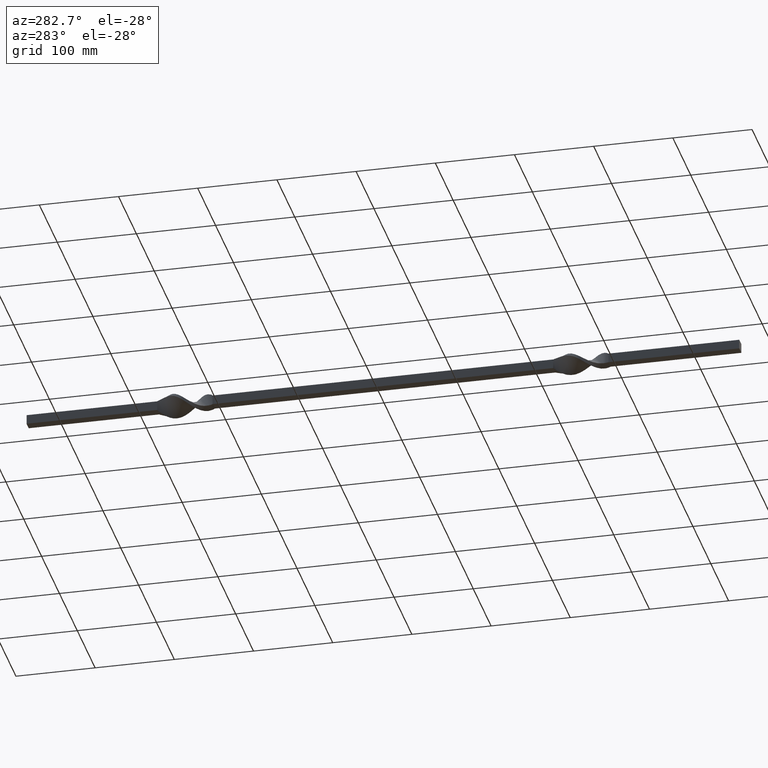
[diagram: clean part render]
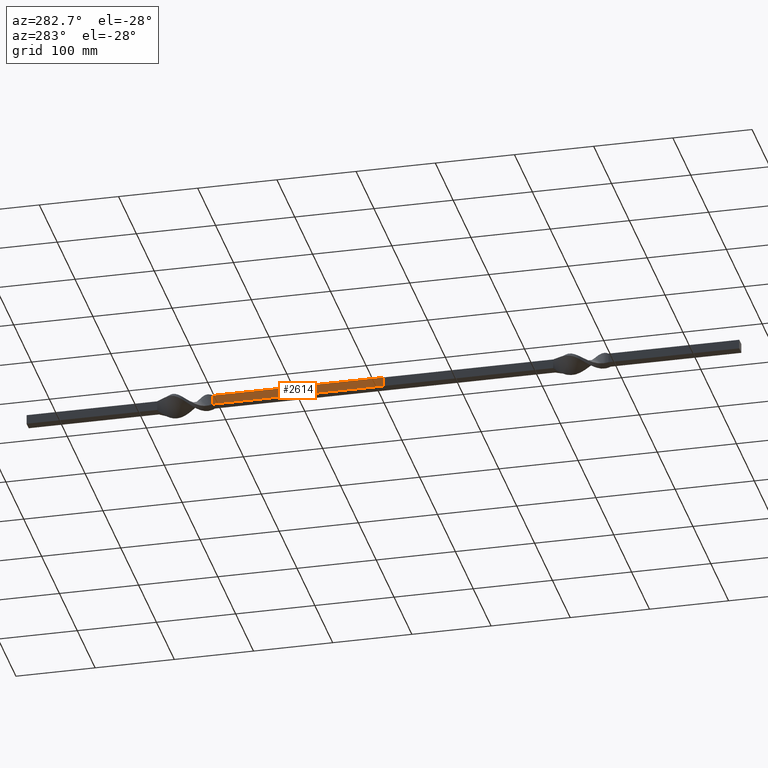
[diagram: same view with one face highlighted and labeled with its STEP entity id]
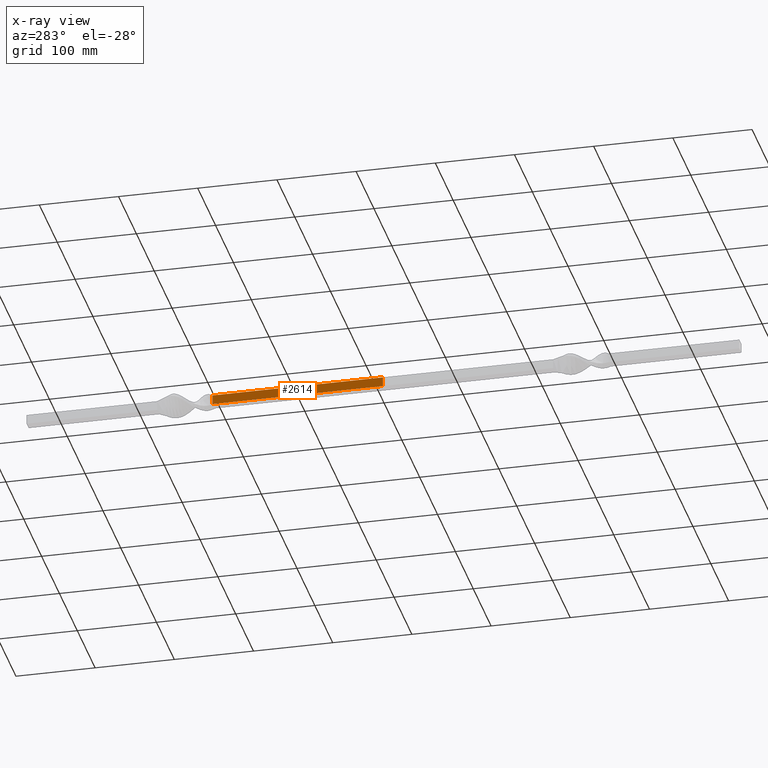
[diagram: x-ray of the same camera — body ghosted, the highlighted face saturated]
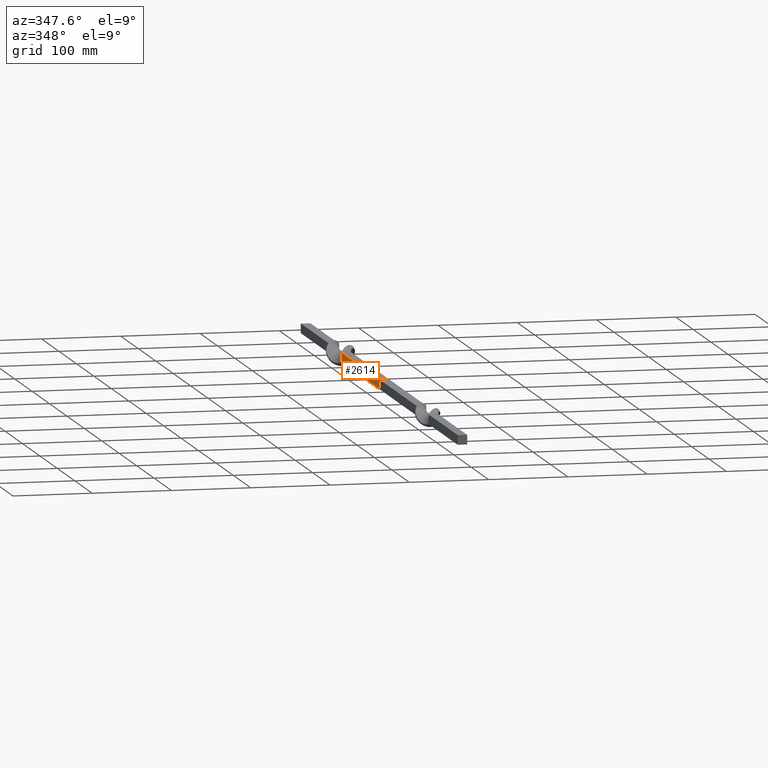
[diagram: same view with one face highlighted and labeled with its STEP entity id]
A machine part, auxiliary view. The second image highlights one B-rep face of the part: STEP entity #2614.
The next image is the same camera in x-ray: the body ghosted, the highlighted face saturated — about 0% of this face is hidden behind the body in this view.
A second angle (auxiliary view) of the same face is appended — the face is thin or edge-on in the first view.
In plain terms, the highlighted planar face has unit normal (1, 0, -0).
Its self-contained STEP definition (entity closure, byte-faithful):
#53 = LINE ( 'NONE', #1292, #8426 ) ;
#617 = CARTESIAN_POINT ( 'NONE',  ( -5.999985707974271776, 215.0000000054434963, 6.000014296099382527 ) ) ;
#1292 = CARTESIAN_POINT ( 'NONE',  ( -6.000014289276494495, 214.9999999999999716, -5.999985710689400342 ) ) ;
#1668 = CARTESIAN_POINT ( 'NONE',  ( -5.999995235127833837, 6.938893903907228378E-15, 2.000014292528942583 ) ) ;
#2200 = CARTESIAN_POINT ( 'NONE',  ( -6.000007141905393304, 0.000000000000000000, -5.999992861700107483 ) ) ;
#2278 = DIRECTION ( 'NONE',  ( 2.381548938525795966E-06, 0.000000000000000000, 0.9999999999971640463 ) ) ;
#2403 = AXIS2_PLACEMENT_3D ( 'NONE', #2762, #9727, #12872 ) ;
#2522 = ORIENTED_EDGE ( 'NONE', *, *, #3460, .T. ) ;
#2614 = ADVANCED_FACE ( 'NONE', ( #7495 ), #11796, .F. ) ;
#2762 = CARTESIAN_POINT ( 'NONE',  ( -5.999985707974271776, -16.97060317452753253, 6.000014296099382527 ) ) ;
#3097 = CARTESIAN_POINT ( 'NONE',  ( -5.999992853987119901, 0.000000000000000000, 6.000007148049705918 ) ) ;
#3336 = VERTEX_POINT ( 'NONE', #2200 ) ;
#3460 = EDGE_CURVE ( 'NONE', #3336, #11776, #4365, .T. ) ;
#3665 = CARTESIAN_POINT ( 'NONE',  ( -6.000014289434957959, 214.9999999999999716, -5.999985714611935528 ) ) ;
#3805 = EDGE_LOOP ( 'NONE', ( #10920, #2522, #9305, #4542 ) ) ;
#4365 = B_SPLINE_CURVE_WITH_KNOTS ( 'NONE', 3,
 ( #6750, #4712, #1668, #8704 ),
 .UNSPECIFIED., .F., .F.,
 ( 4, 4 ),
 ( 0.000000000000000000, 1.000000000000000000 ),
 .UNSPECIFIED. ) ;
#4542 = ORIENTED_EDGE ( 'NONE', *, *, #7280, .F. ) ;
#4712 = CARTESIAN_POINT ( 'NONE',  ( -6.000004762281395898, 6.938893903907228378E-15, -1.999985711041498471 ) ) ;
#5254 = VECTOR ( 'NONE', #11332, 1000.000000000000000 ) ;
#5719 = EDGE_CURVE ( 'NONE', #3336, #8529, #11379, .T. ) ;
#6638 = DIRECTION ( 'NONE',  ( -0.000000000000000000, 1.000000000000000000, -0.000000000000000000 ) ) ;
#6750 = CARTESIAN_POINT ( 'NONE',  ( -6.000007141905393304, 0.000000000000000000, -5.999992861700107483 ) ) ;
#6782 = LINE ( 'NONE', #12406, #8520 ) ;
#7280 = EDGE_CURVE ( 'NONE', #8529, #9407, #53, .T. ) ;
#7495 = FACE_OUTER_BOUND ( 'NONE', #3805, .T. ) ;
#8426 = VECTOR ( 'NONE', #2278, 1000.000000000000227 ) ;
#8520 = VECTOR ( 'NONE', #6638, 1000.000000000000000 ) ;
#8529 = VERTEX_POINT ( 'NONE', #3665 ) ;
#8704 = CARTESIAN_POINT ( 'NONE',  ( -5.999992853987119901, 0.000000000000000000, 6.000007148049705918 ) ) ;
#9300 = CARTESIAN_POINT ( 'NONE',  ( -6.000014289434957959, -16.97060317452753253, -5.999985714611935528 ) ) ;
#9305 = ORIENTED_EDGE ( 'NONE', *, *, #12216, .T. ) ;
#9407 = VERTEX_POINT ( 'NONE', #617 ) ;
#9727 = DIRECTION ( 'NONE',  ( 0.9999999999971636022, 0.000000000000000000, -2.381788388442078801E-06 ) ) ;
#10920 = ORIENTED_EDGE ( 'NONE', *, *, #5719, .F. ) ;
#11332 = DIRECTION ( 'NONE',  ( -0.000000000000000000, 1.000000000000000000, -0.000000000000000000 ) ) ;
#11379 = LINE ( 'NONE', #9300, #5254 ) ;
#11776 = VERTEX_POINT ( 'NONE', #3097 ) ;
#11796 = PLANE ( 'NONE',  #2403 ) ;
#12216 = EDGE_CURVE ( 'NONE', #11776, #9407, #6782, .T. ) ;
#12406 = CARTESIAN_POINT ( 'NONE',  ( -5.999985707974271776, -16.97060317452753253, 6.000014296099382527 ) ) ;
#12872 = DIRECTION ( 'NONE',  ( -2.381788388442078377E-06, 0.000000000000000000, -0.9999999999971634912 ) ) ;